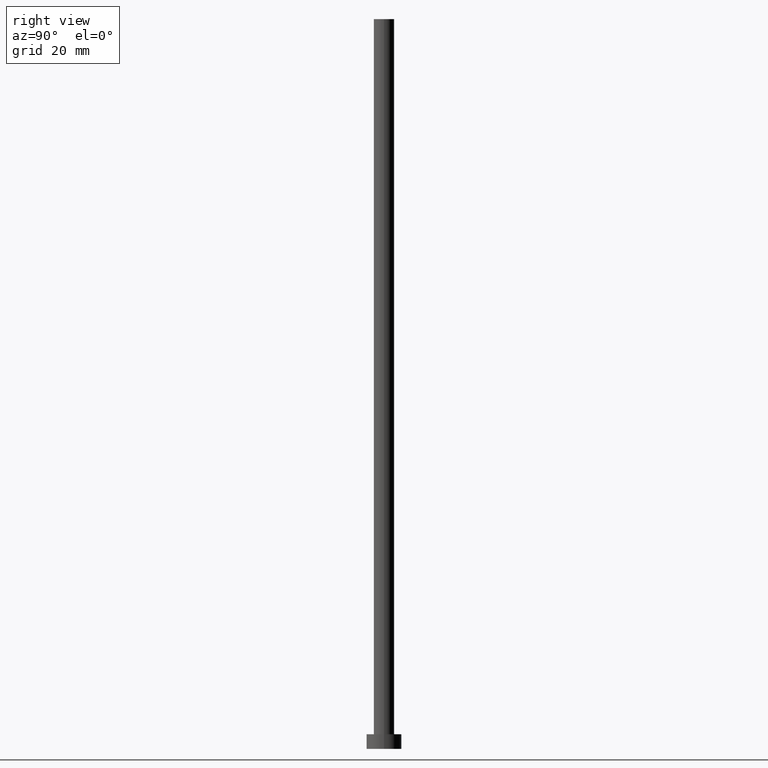
[diagram: clean part render]
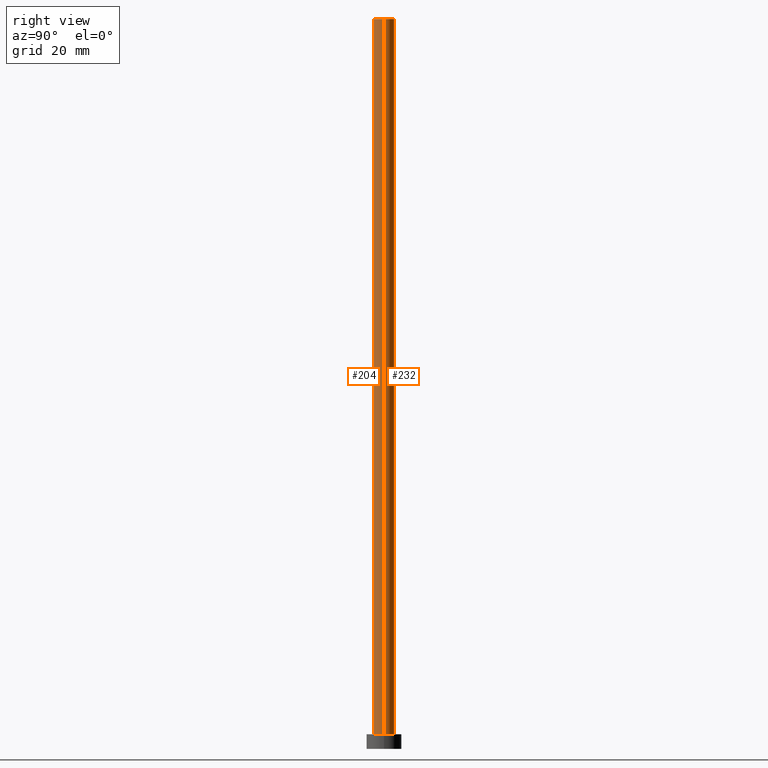
[diagram: same view with one multi-face feature highlighted, each face labeled with its STEP entity id]
A machine part, right view. The highlighted faces form ONE feature: a constant-radius fillet chain: 2 tangent blend faces with common blend radius 3.5 mm. The faces share edges in the B-rep.
Their STEP definitions:
[1] entity #204 (Cylinder):
#8 = ORIENTED_EDGE ( 'NONE', *, *, #151, .T. ) ;
#9 = CARTESIAN_POINT ( 'NONE',  ( -3.500000000000000000, 0.000000000000000000, 250.0000000000000000 ) ) ;
#11 = DIRECTION ( 'NONE',  ( 0.000000000000000000, 0.000000000000000000, 1.000000000000000000 ) ) ;
#23 = DIRECTION ( 'NONE',  ( 0.000000000000000000, 0.000000000000000000, 1.000000000000000000 ) ) ;
#26 = VERTEX_POINT ( 'NONE', #180 ) ;
#28 = LINE ( 'NONE', #9, #255 ) ;
#30 = EDGE_CURVE ( 'NONE', #152, #114, #72, .T. ) ;
#32 = DIRECTION ( 'NONE',  ( -0.000000000000000000, -0.000000000000000000, -1.000000000000000000 ) ) ;
#50 = ORIENTED_EDGE ( 'NONE', *, *, #30, .T. ) ;
#55 = EDGE_CURVE ( 'NONE', #26, #114, #195, .T. ) ;
#71 = CYLINDRICAL_SURFACE ( 'NONE', #185, 3.500000000000000000 ) ;
#72 = CIRCLE ( 'NONE', #131, 3.500000000000000000 ) ;
#75 = VERTEX_POINT ( 'NONE', #155 ) ;
#77 = CARTESIAN_POINT ( 'NONE',  ( 0.000000000000000000, 0.000000000000000000, 250.0000000000000000 ) ) ;
#88 = DIRECTION ( 'NONE',  ( -0.000000000000000000, -0.000000000000000000, -1.000000000000000000 ) ) ;
#101 = CARTESIAN_POINT ( 'NONE',  ( 3.500000000000000000, 4.286263797015736595E-16, 250.0000000000000000 ) ) ;
#102 = ORIENTED_EDGE ( 'NONE', *, *, #110, .F. ) ;
#104 = FACE_OUTER_BOUND ( 'NONE', #117, .T. ) ;
#110 = EDGE_CURVE ( 'NONE', #75, #26, #115, .T. ) ;
#114 = VERTEX_POINT ( 'NONE', #136 ) ;
#115 = CIRCLE ( 'NONE', #150, 3.500000000000000000 ) ;
#117 = EDGE_LOOP ( 'NONE', ( #246, #102, #8, #50 ) ) ;
#131 = AXIS2_PLACEMENT_3D ( 'NONE', #186, #11, #238 ) ;
#136 = CARTESIAN_POINT ( 'NONE',  ( 3.500000000000000000, 4.286263797015736595E-16, 5.000000000000000000 ) ) ;
#147 = DIRECTION ( 'NONE',  ( -1.000000000000000000, 0.000000000000000000, 0.000000000000000000 ) ) ;
#150 = AXIS2_PLACEMENT_3D ( 'NONE', #77, #23, #235 ) ;
#151 = EDGE_CURVE ( 'NONE', #75, #152, #28, .T. ) ;
#152 = VERTEX_POINT ( 'NONE', #158 ) ;
#155 = CARTESIAN_POINT ( 'NONE',  ( -3.500000000000000000, 0.000000000000000000, 250.0000000000000000 ) ) ;
#158 = CARTESIAN_POINT ( 'NONE',  ( -3.500000000000000000, 0.000000000000000000, 5.000000000000000000 ) ) ;
#180 = CARTESIAN_POINT ( 'NONE',  ( 3.500000000000000000, 4.286263797015736595E-16, 250.0000000000000000 ) ) ;
#185 = AXIS2_PLACEMENT_3D ( 'NONE', #201, #32, #147 ) ;
#186 = CARTESIAN_POINT ( 'NONE',  ( 0.000000000000000000, 0.000000000000000000, 5.000000000000000000 ) ) ;
#195 = LINE ( 'NONE', #101, #245 ) ;
#201 = CARTESIAN_POINT ( 'NONE',  ( 0.000000000000000000, 0.000000000000000000, 250.0000000000000000 ) ) ;
#204 = ADVANCED_FACE ( 'NONE', ( #104 ), #71, .T. ) ;
#235 = DIRECTION ( 'NONE',  ( 1.000000000000000000, 0.000000000000000000, 0.000000000000000000 ) ) ;
#238 = DIRECTION ( 'NONE',  ( 1.000000000000000000, 0.000000000000000000, 0.000000000000000000 ) ) ;
#241 = DIRECTION ( 'NONE',  ( -0.000000000000000000, -0.000000000000000000, -1.000000000000000000 ) ) ;
#245 = VECTOR ( 'NONE', #241, 1000.000000000000000 ) ;
#246 = ORIENTED_EDGE ( 'NONE', *, *, #55, .F. ) ;
#255 = VECTOR ( 'NONE', #88, 1000.000000000000000 ) ;
[2] entity #232 (Cylinder):
#9 = CARTESIAN_POINT ( 'NONE',  ( -3.500000000000000000, 0.000000000000000000, 250.0000000000000000 ) ) ;
#20 = EDGE_LOOP ( 'NONE', ( #243, #64, #206, #120 ) ) ;
#26 = VERTEX_POINT ( 'NONE', #180 ) ;
#28 = LINE ( 'NONE', #9, #255 ) ;
#48 = DIRECTION ( 'NONE',  ( -1.000000000000000000, 0.000000000000000000, 0.000000000000000000 ) ) ;
#55 = EDGE_CURVE ( 'NONE', #26, #114, #195, .T. ) ;
#64 = ORIENTED_EDGE ( 'NONE', *, *, #55, .T. ) ;
#66 = AXIS2_PLACEMENT_3D ( 'NONE', #231, #161, #48 ) ;
#74 = EDGE_CURVE ( 'NONE', #26, #75, #127, .T. ) ;
#75 = VERTEX_POINT ( 'NONE', #155 ) ;
#79 = DIRECTION ( 'NONE',  ( 0.000000000000000000, 0.000000000000000000, 1.000000000000000000 ) ) ;
#87 = AXIS2_PLACEMENT_3D ( 'NONE', #230, #130, #112 ) ;
#88 = DIRECTION ( 'NONE',  ( -0.000000000000000000, -0.000000000000000000, -1.000000000000000000 ) ) ;
#95 = AXIS2_PLACEMENT_3D ( 'NONE', #181, #79, #176 ) ;
#101 = CARTESIAN_POINT ( 'NONE',  ( 3.500000000000000000, 4.286263797015736595E-16, 250.0000000000000000 ) ) ;
#103 = CIRCLE ( 'NONE', #95, 3.500000000000000000 ) ;
#106 = FACE_OUTER_BOUND ( 'NONE', #20, .T. ) ;
#112 = DIRECTION ( 'NONE',  ( 1.000000000000000000, 0.000000000000000000, 0.000000000000000000 ) ) ;
#114 = VERTEX_POINT ( 'NONE', #136 ) ;
#120 = ORIENTED_EDGE ( 'NONE', *, *, #151, .F. ) ;
#127 = CIRCLE ( 'NONE', #87, 3.500000000000000000 ) ;
#130 = DIRECTION ( 'NONE',  ( 0.000000000000000000, 0.000000000000000000, 1.000000000000000000 ) ) ;
#136 = CARTESIAN_POINT ( 'NONE',  ( 3.500000000000000000, 4.286263797015736595E-16, 5.000000000000000000 ) ) ;
#145 = EDGE_CURVE ( 'NONE', #114, #152, #103, .T. ) ;
#151 = EDGE_CURVE ( 'NONE', #75, #152, #28, .T. ) ;
#152 = VERTEX_POINT ( 'NONE', #158 ) ;
#155 = CARTESIAN_POINT ( 'NONE',  ( -3.500000000000000000, 0.000000000000000000, 250.0000000000000000 ) ) ;
#158 = CARTESIAN_POINT ( 'NONE',  ( -3.500000000000000000, 0.000000000000000000, 5.000000000000000000 ) ) ;
#161 = DIRECTION ( 'NONE',  ( -0.000000000000000000, -0.000000000000000000, -1.000000000000000000 ) ) ;
#176 = DIRECTION ( 'NONE',  ( 1.000000000000000000, 0.000000000000000000, 0.000000000000000000 ) ) ;
#180 = CARTESIAN_POINT ( 'NONE',  ( 3.500000000000000000, 4.286263797015736595E-16, 250.0000000000000000 ) ) ;
#181 = CARTESIAN_POINT ( 'NONE',  ( 0.000000000000000000, 0.000000000000000000, 5.000000000000000000 ) ) ;
#187 = CYLINDRICAL_SURFACE ( 'NONE', #66, 3.500000000000000000 ) ;
#195 = LINE ( 'NONE', #101, #245 ) ;
#206 = ORIENTED_EDGE ( 'NONE', *, *, #145, .T. ) ;
#230 = CARTESIAN_POINT ( 'NONE',  ( 0.000000000000000000, 0.000000000000000000, 250.0000000000000000 ) ) ;
#231 = CARTESIAN_POINT ( 'NONE',  ( 0.000000000000000000, 0.000000000000000000, 250.0000000000000000 ) ) ;
#232 = ADVANCED_FACE ( 'NONE', ( #106 ), #187, .T. ) ;
#241 = DIRECTION ( 'NONE',  ( -0.000000000000000000, -0.000000000000000000, -1.000000000000000000 ) ) ;
#243 = ORIENTED_EDGE ( 'NONE', *, *, #74, .F. ) ;
#245 = VECTOR ( 'NONE', #241, 1000.000000000000000 ) ;
#255 = VECTOR ( 'NONE', #88, 1000.000000000000000 ) ;